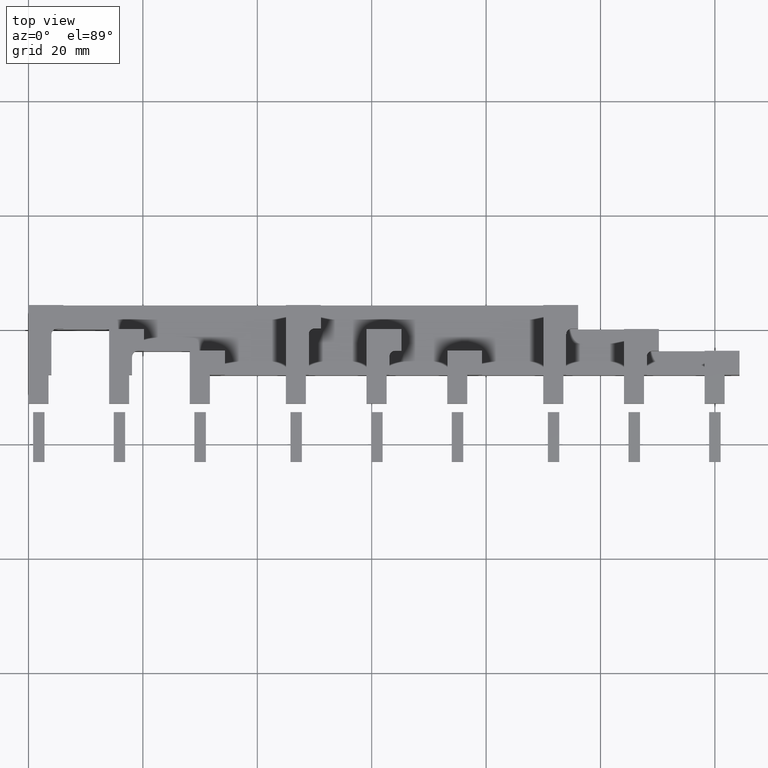
[diagram: clean part render]
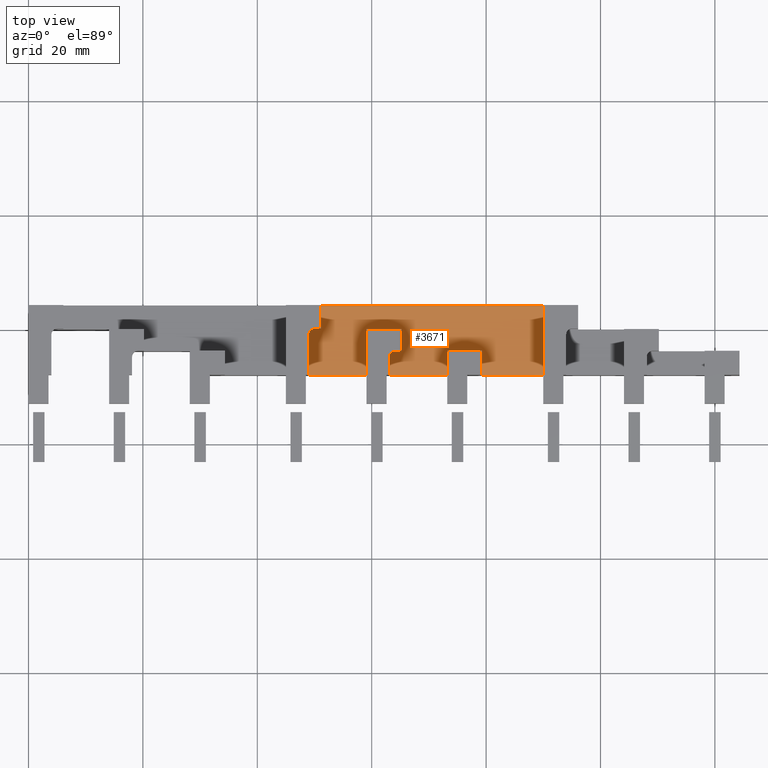
[diagram: same view with one face highlighted and labeled with its STEP entity id]
A machine part, top view. The second image highlights one B-rep face of the part: STEP entity #3671.
In plain terms, the highlighted planar face has unit normal (0, 0, 1).
Its self-contained STEP definition (entity closure, byte-faithful):
#3518=CARTESIAN_POINT('',(52.049999999999926,2.100000000004571,103.99999999999159));
#3519=DIRECTION('',(0.0,0.0,1.0));
#3520=DIRECTION('',(1.0,0.0,0.0));
#3521=AXIS2_PLACEMENT_3D('',#3518,#3519,#3520);
#3522=PLANE('',#3521);
#3523=CARTESIAN_POINT('',(49.000000000000099,-7.999999999991461,103.99999999999162));
#3524=VERTEX_POINT('',#3523);
#3525=CARTESIAN_POINT('',(49.000000000000014,-0.899999999999878,103.99999999999162));
#3526=VERTEX_POINT('',#3525);
#3527=CARTESIAN_POINT('',(49.000000000000099,-7.999999999991461,103.99999999999162));
#3528=DIRECTION('',(0.0,1.0,0.0));
#3529=VECTOR('',#3528,7.099999999991583);
#3530=LINE('',#3527,#3529);
#3531=EDGE_CURVE('',#3524,#3526,#3530,.T.);
#3532=ORIENTED_EDGE('',*,*,#3531,.F.);
#3533=CARTESIAN_POINT('',(59.099999999999895,-7.99999999999149,103.9999999999915));
#3534=VERTEX_POINT('',#3533);
#3535=CARTESIAN_POINT('',(49.000000000000085,-7.999999999991626,103.99999999999163));
#3536=DIRECTION('',(1.0,0.0,0.0));
#3537=VECTOR('',#3536,10.099999999999795);
#3538=LINE('',#3535,#3537);
#3539=EDGE_CURVE('',#3524,#3534,#3538,.T.);
#3540=ORIENTED_EDGE('',*,*,#3539,.T.);
#3541=CARTESIAN_POINT('',(59.099999999999795,7.815970E-013,103.9999999999915));
#3542=VERTEX_POINT('',#3541);
#3543=CARTESIAN_POINT('',(59.099999999999795,7.815970E-013,103.9999999999915));
#3544=DIRECTION('',(0.0,-1.0,0.0));
#3545=VECTOR('',#3544,7.999999999992271);
#3546=LINE('',#3543,#3545);
#3547=EDGE_CURVE('',#3542,#3534,#3546,.T.);
#3548=ORIENTED_EDGE('',*,*,#3547,.F.);
#3549=CARTESIAN_POINT('',(65.199999999999775,1.094236E-012,103.9999999999914));
#3550=VERTEX_POINT('',#3549);
#3551=CARTESIAN_POINT('',(65.199999999999775,1.094236E-012,103.9999999999914));
#3552=DIRECTION('',(-1.0,0.0,0.0));
#3553=VECTOR('',#3552,6.099999999999966);
#3554=LINE('',#3551,#3553);
#3555=EDGE_CURVE('',#3550,#3542,#3554,.T.);
#3556=ORIENTED_EDGE('',*,*,#3555,.F.);
#3557=CARTESIAN_POINT('',(65.199999999999363,-3.799999999998634,103.9999999999914));
#3558=VERTEX_POINT('',#3557);
#3559=CARTESIAN_POINT('',(65.199999999999363,-3.799999999998634,103.9999999999914));
#3560=DIRECTION('',(1.084513E-013,1.0,0.0));
#3561=VECTOR('',#3560,3.799999999999728);
#3562=LINE('',#3559,#3561);
#3563=EDGE_CURVE('',#3558,#3550,#3562,.T.);
#3564=ORIENTED_EDGE('',*,*,#3563,.F.);
#3565=CARTESIAN_POINT('',(64.099999999999852,-3.799999999998662,103.99999999999142));
#3566=VERTEX_POINT('',#3565);
#3567=CARTESIAN_POINT('',(64.099999999999852,-3.799999999998662,103.99999999999142));
#3568=DIRECTION('',(1.0,0.0,0.0));
#3569=VECTOR('',#3568,1.099999999999511);
#3570=LINE('',#3567,#3569);
#3571=EDGE_CURVE('',#3566,#3558,#3570,.T.);
#3572=ORIENTED_EDGE('',*,*,#3571,.F.);
#3573=CARTESIAN_POINT('',(63.099999999999852,-4.799999999998676,103.99999999999145));
#3574=VERTEX_POINT('',#3573);
#3575=CARTESIAN_POINT('',(64.09999999999981,-4.799999999998605,103.99999999999142));
#3576=DIRECTION('',(-6.561292E-015,6.561292E-015,-1.0));
#3577=DIRECTION('',(-0.707106781186557,0.707106781186538,9.279068E-015));
#3578=AXIS2_PLACEMENT_3D('',#3575,#3576,#3577);
#3579=CIRCLE('',#3578,0.999999999999943);
#3580=EDGE_CURVE('',#3574,#3566,#3579,.T.);
#3581=ORIENTED_EDGE('',*,*,#3580,.F.);
#3582=CARTESIAN_POINT('',(63.099999999999895,-7.999999999991504,103.99999999999145));
#3583=VERTEX_POINT('',#3582);
#3584=CARTESIAN_POINT('',(63.099999999999895,-7.999999999991504,103.99999999999145));
#3585=DIRECTION('',(0.0,1.0,0.0));
#3586=VECTOR('',#3585,3.199999999992827);
#3587=LINE('',#3584,#3586);
#3588=EDGE_CURVE('',#3583,#3574,#3587,.T.);
#3589=ORIENTED_EDGE('',*,*,#3588,.F.);
#3590=CARTESIAN_POINT('',(73.199999999999818,-7.999999999991319,103.99999999999132));
#3591=VERTEX_POINT('',#3590);
#3592=CARTESIAN_POINT('',(63.099999999999881,-7.999999999991445,103.99999999999145));
#3593=DIRECTION('',(1.0,0.0,0.0));
#3594=VECTOR('',#3593,10.099999999999909);
#3595=LINE('',#3592,#3594);
#3596=EDGE_CURVE('',#3583,#3591,#3595,.T.);
#3597=ORIENTED_EDGE('',*,*,#3596,.T.);
#3598=CARTESIAN_POINT('',(73.199999999999761,-3.799999999999202,103.99999999999132));
#3599=VERTEX_POINT('',#3598);
#3600=CARTESIAN_POINT('',(73.199999999999818,-7.99999999999132,103.99999999999132));
#3601=DIRECTION('',(0.0,1.0,0.0));
#3602=VECTOR('',#3601,4.199999999992117);
#3603=LINE('',#3600,#3602);
#3604=EDGE_CURVE('',#3591,#3599,#3603,.T.);
#3605=ORIENTED_EDGE('',*,*,#3604,.T.);
#3606=CARTESIAN_POINT('',(79.299999999999784,-3.799999999999117,103.99999999999123));
#3607=VERTEX_POINT('',#3606);
#3608=CARTESIAN_POINT('',(73.199999999999761,-3.799999999999202,103.99999999999132));
#3609=DIRECTION('',(1.0,0.0,0.0));
#3610=VECTOR('',#3609,6.100000000000023);
#3611=LINE('',#3608,#3610);
#3612=EDGE_CURVE('',#3599,#3607,#3611,.T.);
#3613=ORIENTED_EDGE('',*,*,#3612,.T.);
#3614=CARTESIAN_POINT('',(79.299999999999841,-7.99999999999912,103.99999999999123));
#3615=VERTEX_POINT('',#3614);
#3616=CARTESIAN_POINT('',(79.299999999999784,-3.799999999999117,103.99999999999123));
#3617=DIRECTION('',(0.0,-1.0,0.0));
#3618=VECTOR('',#3617,4.200000000000004);
#3619=LINE('',#3616,#3618);
#3620=EDGE_CURVE('',#3607,#3615,#3619,.T.);
#3621=ORIENTED_EDGE('',*,*,#3620,.T.);
#3622=CARTESIAN_POINT('',(90.000000000000057,-7.999999999991091,103.99999999999109));
#3623=VERTEX_POINT('',#3622);
#3624=CARTESIAN_POINT('',(79.299999999999812,-7.999999999991236,103.99999999999123));
#3625=DIRECTION('',(1.0,0.0,0.0));
#3626=VECTOR('',#3625,10.700000000000216);
#3627=LINE('',#3624,#3626);
#3628=EDGE_CURVE('',#3615,#3623,#3627,.T.);
#3629=ORIENTED_EDGE('',*,*,#3628,.T.);
#3630=CARTESIAN_POINT('',(90.000000000000071,4.200000000008957,103.99999999999109));
#3631=VERTEX_POINT('',#3630);
#3632=CARTESIAN_POINT('',(90.000000000000071,4.200000000008957,103.99999999999109));
#3633=DIRECTION('',(0.0,-1.0,0.0));
#3634=VECTOR('',#3633,12.200000000000049);
#3635=LINE('',#3632,#3634);
#3636=EDGE_CURVE('',#3631,#3623,#3635,.T.);
#3637=ORIENTED_EDGE('',*,*,#3636,.F.);
#3638=CARTESIAN_POINT('',(51.099999999999724,4.200000000008431,103.9999999999916));
#3639=VERTEX_POINT('',#3638);
#3640=CARTESIAN_POINT('',(90.000000000000071,4.200000000008948,103.99999999999109));
#3641=DIRECTION('',(-1.0,0.0,0.0));
#3642=VECTOR('',#3641,38.90000000000034);
#3643=LINE('',#3640,#3642);
#3644=EDGE_CURVE('',#3631,#3639,#3643,.T.);
#3645=ORIENTED_EDGE('',*,*,#3644,.T.);
#3646=CARTESIAN_POINT('',(51.099999999999795,0.100000000000122,103.9999999999916));
#3647=VERTEX_POINT('',#3646);
#3648=CARTESIAN_POINT('',(51.099999999999795,0.100000000000122,103.9999999999916));
#3649=DIRECTION('',(0.0,1.0,0.0));
#3650=VECTOR('',#3649,4.100000000008309);
#3651=LINE('',#3648,#3650);
#3652=EDGE_CURVE('',#3647,#3639,#3651,.T.);
#3653=ORIENTED_EDGE('',*,*,#3652,.F.);
#3654=CARTESIAN_POINT('',(50.0,0.100000000000108,103.9999999999916));
#3655=VERTEX_POINT('',#3654);
#3656=CARTESIAN_POINT('',(50.0,0.100000000000108,103.9999999999916));
#3657=DIRECTION('',(1.0,0.0,0.0));
#3658=VECTOR('',#3657,1.099999999999795);
#3659=LINE('',#3656,#3658);
#3660=EDGE_CURVE('',#3655,#3647,#3659,.T.);
#3661=ORIENTED_EDGE('',*,*,#3660,.F.);
#3662=CARTESIAN_POINT('',(50.000000000000007,-0.899999999999892,103.9999999999916));
#3663=DIRECTION('',(-6.561292E-015,6.561292E-015,-1.0));
#3664=DIRECTION('',(-0.707106781186547,0.707106781186549,9.279068E-015));
#3665=AXIS2_PLACEMENT_3D('',#3662,#3663,#3664);
#3666=CIRCLE('',#3665,1.0);
#3667=EDGE_CURVE('',#3526,#3655,#3666,.T.);
#3668=ORIENTED_EDGE('',*,*,#3667,.F.);
#3669=EDGE_LOOP('',(#3532,#3540,#3548,#3556,#3564,#3572,#3581,#3589,#3597,#3605,#3613,#3621,#3629,#3637,#3645,#3653,#3661,#3668));
#3670=FACE_OUTER_BOUND('',#3669,.T.);
#3671=ADVANCED_FACE('',(#3670),#3522,.T.);